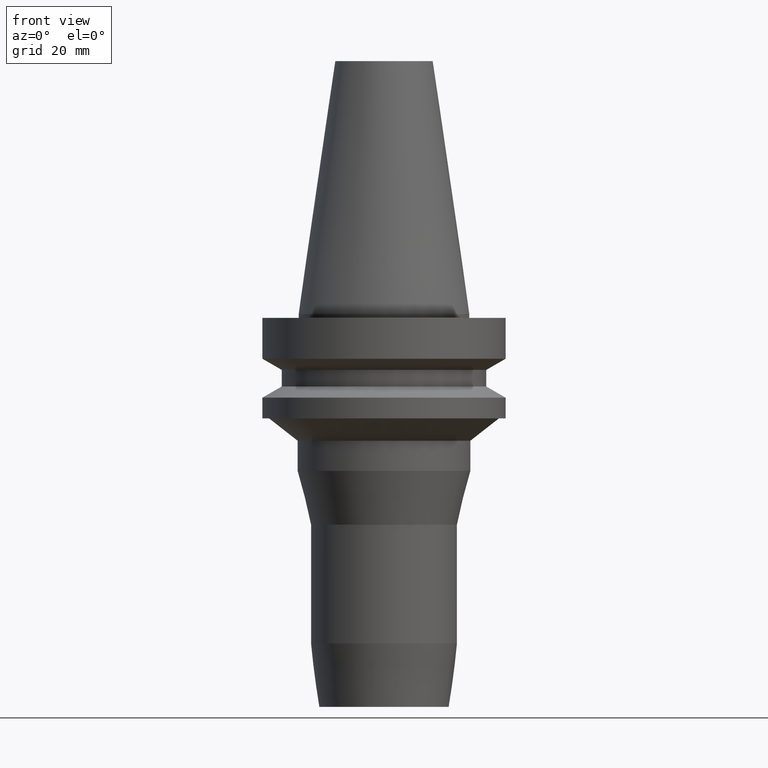
[diagram: clean part render]
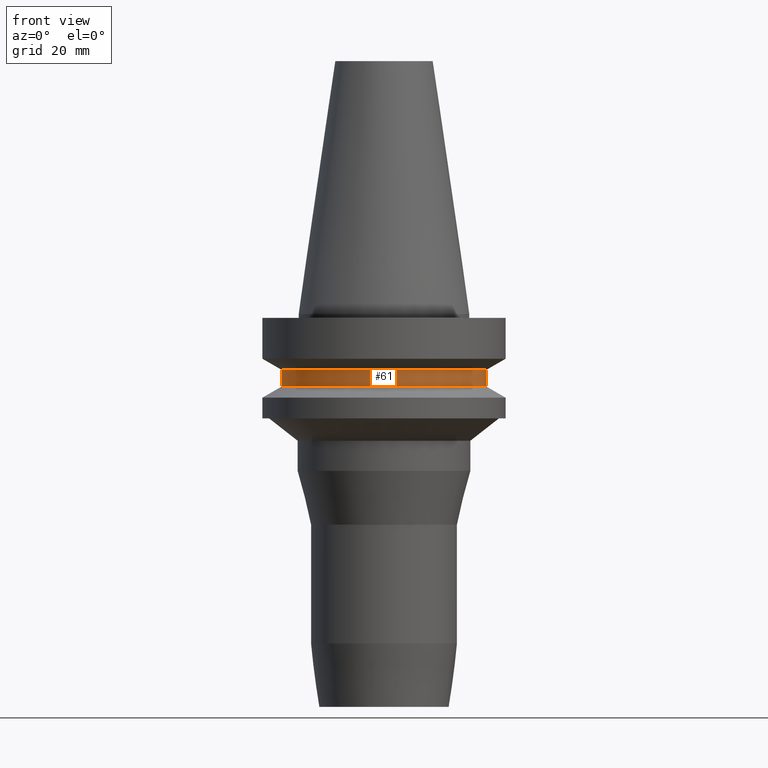
[diagram: same view with one face highlighted and labeled with its STEP entity id]
A machine part, front view. The second image highlights one B-rep face of the part: STEP entity #61.
In plain terms, the highlighted cylindrical surface (bore or boss wall) has radius 26.5 mm, axis along (0, 0, -1).
Its self-contained STEP definition (entity closure, byte-faithful):
#56=EDGE_CURVE('Unnamed[1]',#153,#153,#154,.T.);
#61=ADVANCED_FACE('Unnamed[1]',(#160,#161),#162,.T.);
#99=EDGE_CURVE('Unnamed[1]',#219,#219,#220,.T.);
#153=VERTEX_POINT('',#286);
#154=CIRCLE('',#287,26.4999999999994);
#160=FACE_BOUND('',#295,.T.);
#161=FACE_BOUND('',#296,.T.);
#162=CYLINDRICAL_SURFACE('',#297,26.4999999999997);
#219=VERTEX_POINT('',#368);
#220=CIRCLE('',#369,26.4999999999999);
#286=CARTESIAN_POINT('',(8.8494551369045E-016,26.4999999999995,-14.4522569986152));
#287=AXIS2_PLACEMENT_3D('',#442,#443,#444);
#295=EDGE_LOOP('',(#449));
#296=EDGE_LOOP('',(#450));
#297=AXIS2_PLACEMENT_3D('',#451,#452,#453);
#368=CARTESIAN_POINT('',(1.1479681728942E-015,26.5,-18.7477430013855));
#369=AXIS2_PLACEMENT_3D('',#514,#515,#516);
#442=CARTESIAN_POINT('',(8.8494551369045E-016,8.70698910273809E-014,-14.4522569986152));
#443=DIRECTION('',(6.12323399573676E-017,1.22464679914767E-016,-1.0));
#444=DIRECTION('',(-1.23259516440786E-032,1.0,1.22464679914767E-016));
#449=ORIENTED_EDGE('',*,*,#99,.F.);
#450=ORIENTED_EDGE('',*,*,#56,.T.);
#451=CARTESIAN_POINT('',(1.01645684329232E-015,8.73329136865847E-014,-16.6000000000004));
#452=DIRECTION('',(6.12323399573677E-017,1.22464679914766E-016,-1.0));
#453=DIRECTION('',(-1.23259516440785E-032,1.0,1.22464679914766E-016));
#514=CARTESIAN_POINT('',(1.1479681728942E-015,8.75959363457884E-014,-18.7477430013855));
#515=DIRECTION('',(6.12323399573677E-017,1.22464679914764E-016,-1.0));
#516=DIRECTION('',(-1.23259516440783E-032,1.0,1.22464679914764E-016));